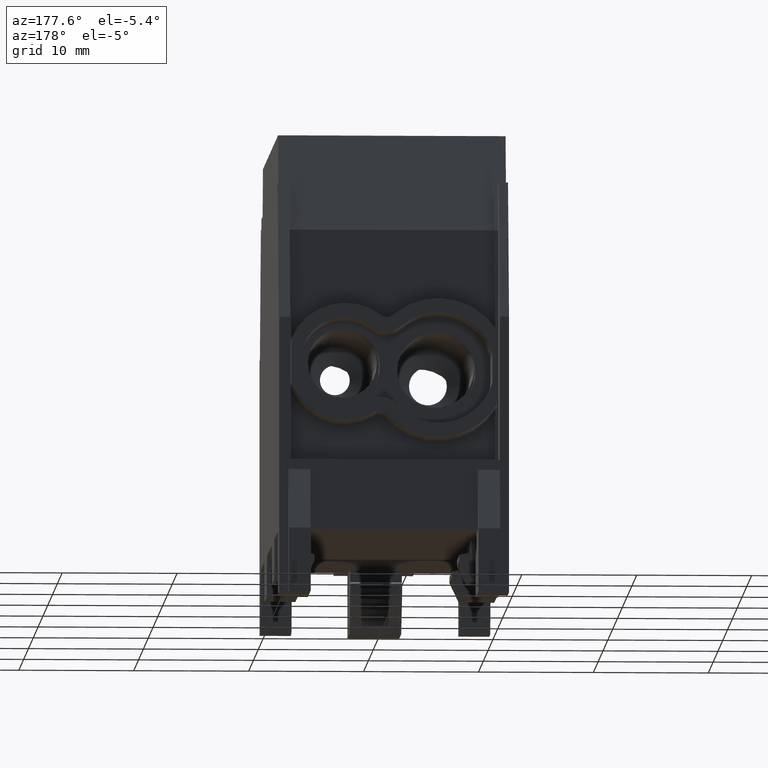
[diagram: clean part render]
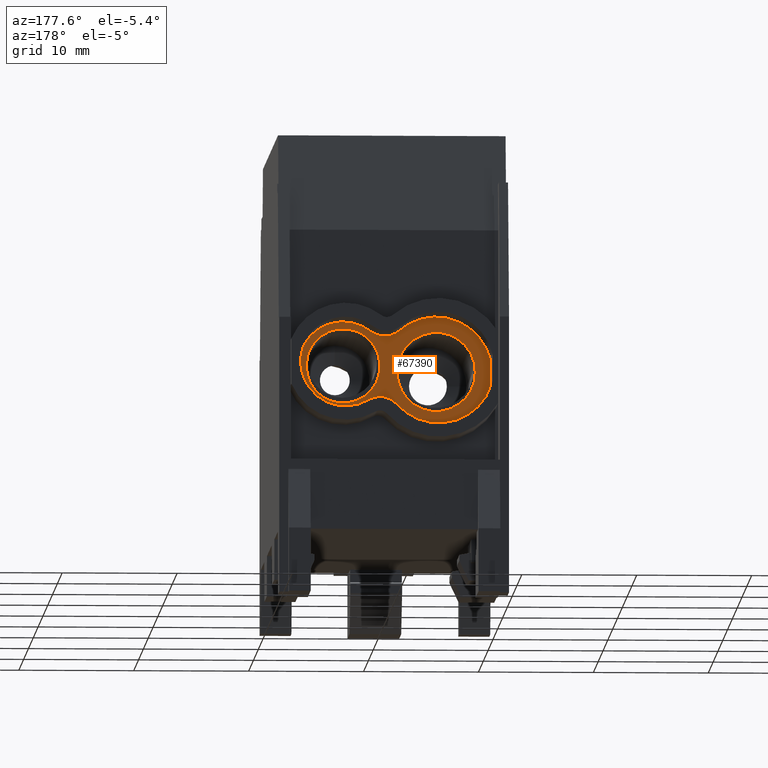
[diagram: same view with one face highlighted and labeled with its STEP entity id]
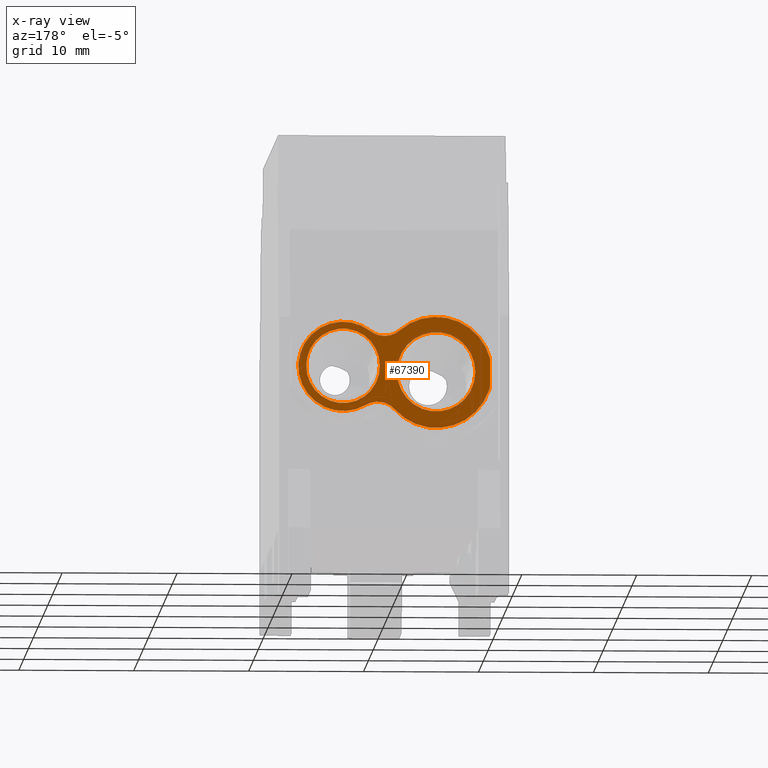
[diagram: x-ray of the same camera — body ghosted, the highlighted face saturated]
A machine part, auxiliary view. The second image highlights one B-rep face of the part: STEP entity #67390.
The next image is the same camera in x-ray: the body ghosted, the highlighted face saturated — about 0% of this face is hidden behind the body in this view.
In plain terms, the highlighted planar face has unit normal (-0, -1, -0).
Its self-contained STEP definition (entity closure, byte-faithful):
#7690=CARTESIAN_POINT('',(-9.9,17.15,-9.44535933870499));
#7700=DIRECTION('',(-4.78693427719747E-32,-1.,-2.58410026187826E-17));
#7710=DIRECTION('',(-5.55111512312577E-17,-2.58410026187826E-17,1.));
#7720=AXIS2_PLACEMENT_3D('',#7690,#7700,#7710);
#7730=PLANE('',#7720);
#66190=CARTESIAN_POINT('',(-3.8,17.15,-21.745359338705));
#66200=DIRECTION('',(-2.77555756156289E-16,-1.,-5.80952514931361E-16));
#66210=DIRECTION('',(3.60536343048376E-17,-5.80952514931361E-16,1.));
#66220=AXIS2_PLACEMENT_3D('',#66190,#66200,#66210);
#66230=CIRCLE('',#66220,4.85);
#66240=CARTESIAN_POINT('',(-0.618119762768186,17.15,-18.0850126125172));
#66250=VERTEX_POINT('',#66240);
#66260=CARTESIAN_POINT('',(-8.49999999999999,17.15,-20.5484884183464));
#66270=VERTEX_POINT('',#66260);
#66280=EDGE_CURVE('',#66250,#66270,#66230,.T.);
#66290=ORIENTED_EDGE('',*,*,#66280,.F.);
#66300=CARTESIAN_POINT('',(-8.5,17.15,-20.9896731686598));
#66310=DIRECTION('',(5.55111512312578E-17,7.19730393009505E-16,-1.));
#66320=VECTOR('',#66310,1.);
#66330=LINE('',#66300,#66320);
#66340=CARTESIAN_POINT('',(-8.49999999999999,17.15,-22.6577737182497));
#66350=VERTEX_POINT('',#66340);
#66360=EDGE_CURVE('',#66270,#66350,#66330,.T.);
#66370=ORIENTED_EDGE('',*,*,#66360,.F.);
#66380=CARTESIAN_POINT('',(-6.5,17.15,-22.6577737182497));
#66390=DIRECTION('',(-2.77555756156289E-16,-1.,-5.80952514931361E-16));
#66400=DIRECTION('',(5.55111512312577E-17,5.80952514931361E-16,-1.));
#66410=AXIS2_PLACEMENT_3D('',#66380,#66390,#66400);
#66420=CIRCLE('',#66410,2.);
#66430=CARTESIAN_POINT('',(-8.39473684210526,17.15,-23.2980645109127));
#66440=VERTEX_POINT('',#66430);
#66450=EDGE_CURVE('',#66350,#66440,#66420,.T.);
#66460=ORIENTED_EDGE('',*,*,#66450,.F.);
#66470=CARTESIAN_POINT('',(-3.8,17.15,-21.745359338705));
#66480=DIRECTION('',(-2.77555756156289E-16,-1.,-5.80952514931361E-16));
#66490=DIRECTION('',(-0.947368421052632,4.48936831606326E-16,
-0.320145396331485));
#66500=AXIS2_PLACEMENT_3D('',#66470,#66480,#66490);
#66510=CIRCLE('',#66500,4.85);
#66520=CARTESIAN_POINT('',(-0.192096860194469,17.15,-24.9865836342114));
#66530=VERTEX_POINT('',#66520);
#66540=EDGE_CURVE('',#66440,#66530,#66510,.T.);
#66550=ORIENTED_EDGE('',*,*,#66540,.F.);
#66560=CARTESIAN_POINT('',(1.29569824900369,17.15,-26.3231709725646));
#66570=DIRECTION('',(-2.77555756156289E-16,-1.,-5.80952514931361E-16));
#66580=DIRECTION('',(5.55111512312577E-17,5.80952514931361E-16,-1.));
#66590=AXIS2_PLACEMENT_3D('',#66560,#66570,#66580);
#66600=CIRCLE('',#66590,2.);
#66610=CARTESIAN_POINT('',(2.31410562222278,17.15,-24.6018788932902));
#66620=VERTEX_POINT('',#66610);
#66630=EDGE_CURVE('',#66620,#66530,#66600,.T.);
#66640=ORIENTED_EDGE('',*,*,#66630,.T.);
#66650=CARTESIAN_POINT('',(4.3,17.15,-21.245359338705));
#66660=DIRECTION('',(-2.77555756156289E-16,-1.,-5.80952514931361E-16));
#66670=DIRECTION('',(5.55111512312577E-17,5.80952514931361E-16,-1.));
#66680=AXIS2_PLACEMENT_3D('',#66650,#66660,#66670);
#66690=CIRCLE('',#66680,3.9);
#66700=CARTESIAN_POINT('',(1.91637010440845,17.15,-18.1585635046981));
#66710=VERTEX_POINT('',#66700);
#66720=EDGE_CURVE('',#66620,#66710,#66690,.T.);
#66730=ORIENTED_EDGE('',*,*,#66720,.F.);
#66740=CARTESIAN_POINT('',(0.693995798976889,17.15,-16.5755912821305));
#66750=DIRECTION('',(-2.77555756156289E-16,-1.,-5.80952514931361E-16));
#66760=DIRECTION('',(5.55111512312577E-17,5.80952514931361E-16,-1.));
#66770=AXIS2_PLACEMENT_3D('',#66740,#66750,#66760);
#66780=CIRCLE('',#66770,2.);
#66790=EDGE_CURVE('',#66250,#66710,#66780,.T.);
#66800=ORIENTED_EDGE('',*,*,#66790,.T.);
#66810=EDGE_LOOP('',(#66800,#66730,#66640,#66550,#66460,#66370,#66290));
#66820=FACE_OUTER_BOUND('',#66810,.T.);
#66830=CARTESIAN_POINT('',(-3.8,17.15,-21.645359338705));
#66840=DIRECTION('',(2.77555756156289E-16,1.,5.80952514931361E-16));
#66850=DIRECTION('',(-5.55111512312577E-17,-5.80952514931361E-16,1.));
#66860=AXIS2_PLACEMENT_3D('',#66830,#66840,#66850);
#66870=CIRCLE('',#66860,3.4);
#66880=CARTESIAN_POINT('',(-7.2,17.15,-21.645359338705));
#66890=VERTEX_POINT('',#66880);
#66900=CARTESIAN_POINT('',(-0.399999999999995,17.15,-21.645359338705));
#66910=VERTEX_POINT('',#66900);
#66920=EDGE_CURVE('',#66890,#66910,#66870,.T.);
#66930=ORIENTED_EDGE('',*,*,#66920,.F.);
#66940=CARTESIAN_POINT('',(-0.399999999999996,17.15,1.2286477310101E-14)
);
#66950=DIRECTION('',(-5.55111512312576E-17,-2.58410026187826E-17,1.));
#66960=VECTOR('',#66950,1.);
#66970=LINE('',#66940,#66960);
#66980=CARTESIAN_POINT('',(-0.399999999999995,17.15,-21.745359338705));
#66990=VERTEX_POINT('',#66980);
#67000=EDGE_CURVE('',#66990,#66910,#66970,.T.);
#67010=ORIENTED_EDGE('',*,*,#67000,.T.);
#67020=CARTESIAN_POINT('',(-3.8,17.15,-21.745359338705));
#67030=DIRECTION('',(2.77555756156289E-16,1.,5.80952514931361E-16));
#67040=DIRECTION('',(-5.55111512312577E-17,-5.80952514931361E-16,1.));
#67050=AXIS2_PLACEMENT_3D('',#67020,#67030,#67040);
#67060=CIRCLE('',#67050,3.4);
#67070=CARTESIAN_POINT('',(-7.2,17.15,-21.745359338705));
#67080=VERTEX_POINT('',#67070);
#67090=EDGE_CURVE('',#66990,#67080,#67060,.T.);
#67100=ORIENTED_EDGE('',*,*,#67090,.F.);
#67110=CARTESIAN_POINT('',(-7.2,17.15,1.19090014817284E-14));
#67120=DIRECTION('',(5.55111512312576E-17,2.58410026187826E-17,-1.));
#67130=VECTOR('',#67120,1.);
#67140=LINE('',#67110,#67130);
#67150=EDGE_CURVE('',#66890,#67080,#67140,.T.);
#67160=ORIENTED_EDGE('',*,*,#67150,.T.);
#67170=EDGE_LOOP('',(#67160,#67100,#67010,#66930));
#67180=FACE_BOUND('',#67170,.T.);
#67190=CARTESIAN_POINT('',(4.3,17.15,-21.145359338705));
#67200=DIRECTION('',(2.77555756156289E-16,1.,5.80952514931361E-16));
#67210=DIRECTION('',(-5.55111512312577E-17,-5.80952514931361E-16,1.));
#67220=AXIS2_PLACEMENT_3D('',#67190,#67200,#67210);
#67230=CIRCLE('',#67220,3.1984371183439);
#67240=CARTESIAN_POINT('',(1.10156288165611,17.15,-21.145359338705));
#67250=VERTEX_POINT('',#67240);
#67260=CARTESIAN_POINT('',(7.4984371183439,17.15,-21.145359338705));
#67270=VERTEX_POINT('',#67260);
#67280=EDGE_CURVE('',#67250,#67270,#67230,.T.);
#67290=ORIENTED_EDGE('',*,*,#67280,.F.);
#67300=CARTESIAN_POINT('',(4.3,17.15,-21.245359338705));
#67310=DIRECTION('',(2.77555756156289E-16,1.,5.80952514931361E-16));
#67320=DIRECTION('',(-5.55111512312577E-17,-5.80952514931361E-16,1.));
#67330=AXIS2_PLACEMENT_3D('',#67300,#67310,#67320);
#67340=CIRCLE('',#67330,3.2);
#67350=EDGE_CURVE('',#67270,#67250,#67340,.T.);
#67360=ORIENTED_EDGE('',*,*,#67350,.F.);
#67370=EDGE_LOOP('',(#67360,#67290));
#67380=FACE_BOUND('',#67370,.T.);
#67390=ADVANCED_FACE('',(#66820,#67180,#67380),#7730,.F.);